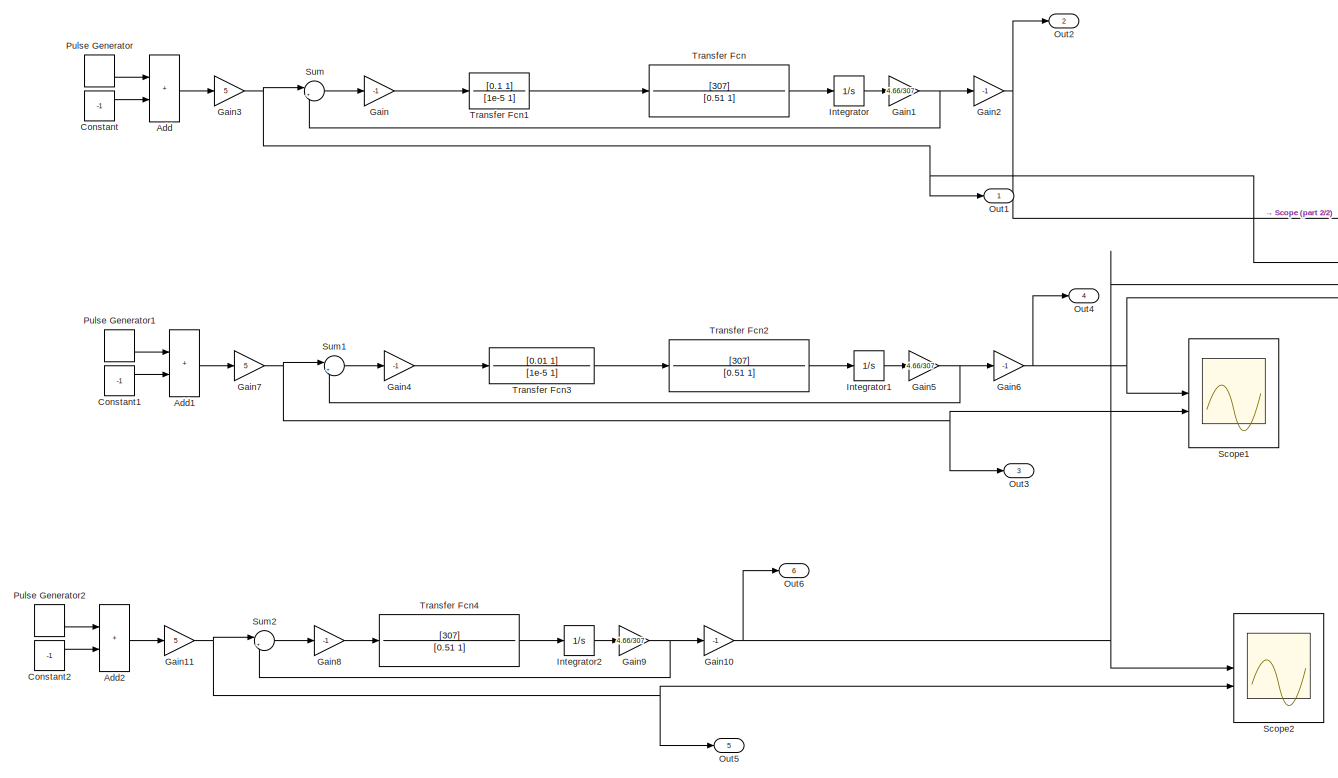
[diagram: root canvas - part 1/2, center side, full height]
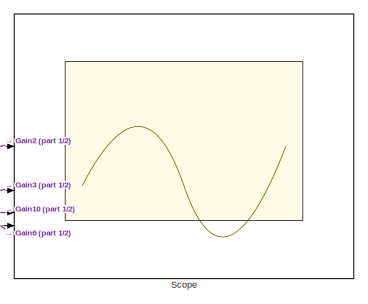
[diagram: root canvas - part 2/2, top right region]
MODEL slx_57ec15a544c1
KIND model
CONFIG AbsTol = auto
CONFIG EnableMultiTasking = off
CONFIG FixedStep = auto
CONFIG MaxStep = auto
CONFIG MinStep = auto
CONFIG RelTol = 1e-3
CONFIG SampleTimeConstraint = Unconstrained
CONFIG SolverName = VariableStepAuto
CONFIG StartTime = 0.0
CONFIG StopTime = 30
BLOCK [Sum] Add
  IconShape = rectangular
BLOCK [Sum] Add1
  IconShape = rectangular
BLOCK [Sum] Add2
  IconShape = rectangular
BLOCK [Constant] Constant
  Value = -1
BLOCK [Constant] Constant1
  Value = -1
BLOCK [Constant] Constant2
  Value = -1
BLOCK [Gain] Gain
  Gain = -1
BLOCK [Gain] Gain1
  Gain = 4.66/307
BLOCK [Gain] Gain10
  Gain = -1
BLOCK [Gain] Gain11
  Gain = 5
BLOCK [Gain] Gain2
  Gain = -1
BLOCK [Gain] Gain3
  Gain = 5
BLOCK [Gain] Gain4
  Gain = -1
BLOCK [Gain] Gain5
  Gain = 4.66/307
BLOCK [Gain] Gain6
  Gain = -1
BLOCK [Gain] Gain7
  Gain = 5
BLOCK [Gain] Gain8
  Gain = -1
BLOCK [Gain] Gain9
  Gain = 4.66/307
BLOCK [Integrator] Integrator
BLOCK [Integrator] Integrator1
BLOCK [Integrator] Integrator2
BLOCK [Outport] Out1
  SignalName = input
BLOCK [Outport] Out2
  Port = 2
  SignalName = output_One
BLOCK [Outport] Out3
  Port = 3
  SignalName = input
BLOCK [Outport] Out4
  Port = 4
  SignalName = output_pointOne
BLOCK [Outport] Out5
  Port = 5
  SignalName = input
BLOCK [Outport] Out6
  Port = 6
  SignalName = output
BLOCK [DiscretePulseGenerator] Pulse Generator
  Amplitude = 2
  Period = 20
  PulseType = Time based
  PulseWidth = 50
BLOCK [DiscretePulseGenerator] Pulse Generator1
  Amplitude = 2
  Period = 20
  PulseType = Time based
  PulseWidth = 50
BLOCK [DiscretePulseGenerator] Pulse Generator2
  Amplitude = 2
  Period = 20
  PulseType = Time based
  PulseWidth = 50
BLOCK [Scope] Scope
  Floating = off
  NumInputPorts = 4
  ScopeSpecificationString = Simulink.scopes.TimeScopeBlockCfg('CurrentConfiguration', extmgr.ConfigurationSet(extmgr.Configuration('Core','General UI',true),extmgr.Configuration('Core','Source UI',true),extmgr.Configuration('Sources','WiredSimulink',true),extmgr.Configuration('Visuals','Time Domain',true,'SerializedDisplays',{struct('MinYLimReal','-10.50719','MaxYLimReal','10.50729','YLabelReal','','MinYLimMag','0.00000','Ma...<+1388ch>
BLOCK [Scope] Scope1
  Floating = off
  NumInputPorts = 2
  ScopeSpecificationString = Simulink.scopes.TimeScopeBlockCfg('CurrentConfiguration', extmgr.ConfigurationSet(extmgr.Configuration('Core','General UI',true),extmgr.Configuration('Core','Source UI',true),extmgr.Configuration('Sources','WiredSimulink',true,'DataLoggingVariableName','ScopeData1'),extmgr.Configuration('Visuals','Time Domain',true,'SerializedDisplays',{struct('MinYLimReal','-10.27509','MaxYLimReal','10.27515','YL...<+1433ch>
BLOCK [Scope] Scope2
  Floating = off
  NumInputPorts = 2
  ScopeSpecificationString = Simulink.scopes.TimeScopeBlockCfg('CurrentConfiguration', extmgr.ConfigurationSet(extmgr.Configuration('Core','General UI',true),extmgr.Configuration('Core','Source UI',true),extmgr.Configuration('Sources','WiredSimulink',true,'DataLoggingVariableName','ScopeData2'),extmgr.Configuration('Visuals','Time Domain',true,'SerializedDisplays',{struct('MinYLimReal','-10.50719','MaxYLimReal','10.50729','YL...<+1407ch>
BLOCK [Sum] Sum
  Inputs = |++
BLOCK [Sum] Sum1
  Inputs = |++
BLOCK [Sum] Sum2
  Inputs = |++
BLOCK [TransferFcn] Transfer Fcn
  Denominator = [0.51 1]
  Numerator = [307]
BLOCK [TransferFcn] Transfer Fcn1
  Denominator = [1e-5 1]
  Numerator = [0.1 1]
BLOCK [TransferFcn] Transfer Fcn2
  Denominator = [0.51 1]
  Numerator = [307]
BLOCK [TransferFcn] Transfer Fcn3
  Denominator = [1e-5  1]
  Numerator = [0.01 1]
BLOCK [TransferFcn] Transfer Fcn4
  Denominator = [0.51 1]
  Numerator = [307]
LINE Add1:1 -> Gain7:1
LINE Add2:1 -> Gain11:1
LINE Add:1 -> Gain3:1
LINE Constant1:1 -> Add1:2
LINE Constant2:1 -> Add2:2
LINE Constant:1 -> Add:2
NET Gain10:1 -> Out6:1, Scope2:1, Scope:3
NET Gain11:1 -> Out5:1, Scope2:2, Sum2:1
NET Gain1:1 -> Gain2:1, Sum:2
NET Gain2:1 -> Out2:1, Scope:1
NET Gain3:1 -> Out1:1, Scope:2, Sum:1
LINE Gain4:1 -> Transfer Fcn3:1
NET Gain5:1 -> Gain6:1, Sum1:2
NET Gain6:1 -> Out4:1, Scope1:1, Scope:4
NET Gain7:1 -> Out3:1, Scope1:2, Sum1:1
LINE Gain8:1 -> Transfer Fcn4:1
NET Gain9:1 -> Gain10:1, Sum2:2
LINE Gain:1 -> Transfer Fcn1:1
LINE Integrator1:1 -> Gain5:1
LINE Integrator2:1 -> Gain9:1
LINE Integrator:1 -> Gain1:1
LINE Pulse Generator1:1 -> Add1:1
LINE Pulse Generator2:1 -> Add2:1
LINE Pulse Generator:1 -> Add:1
LINE Sum1:1 -> Gain4:1
LINE Sum2:1 -> Gain8:1
LINE Sum:1 -> Gain:1
LINE Transfer Fcn1:1 -> Transfer Fcn:1
LINE Transfer Fcn2:1 -> Integrator1:1
LINE Transfer Fcn3:1 -> Transfer Fcn2:1
LINE Transfer Fcn4:1 -> Integrator2:1
LINE Transfer Fcn:1 -> Integrator:1
note: NET lines group one-source signal fan-out (src -> all destinations, sorted); 1:1 wires keep LINE
